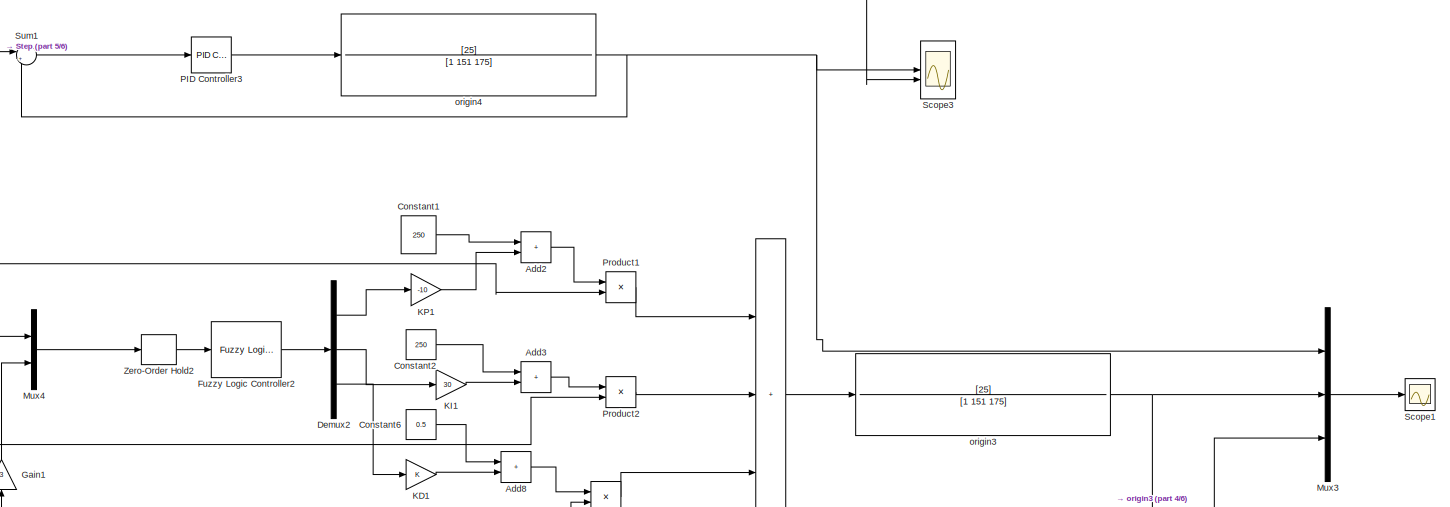
[diagram: root canvas - part 1/6, top right region]
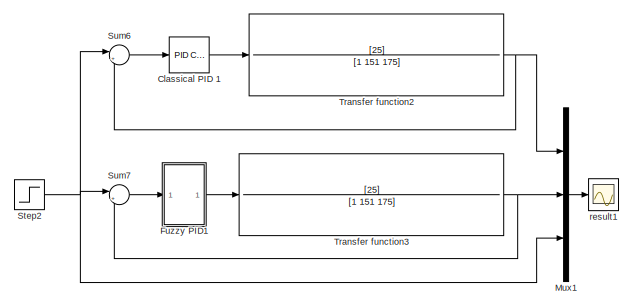
[diagram: root canvas - part 2/6, top left region]
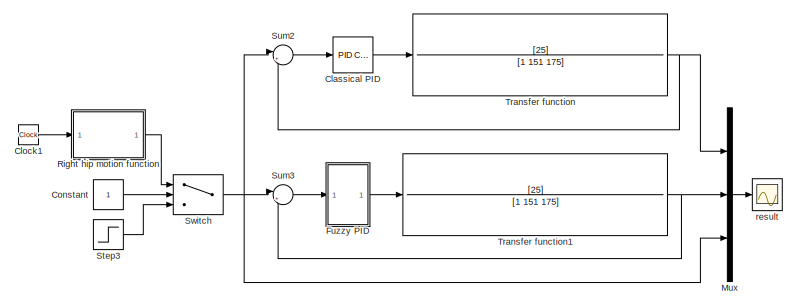
[diagram: root canvas - part 3/6, top left region]
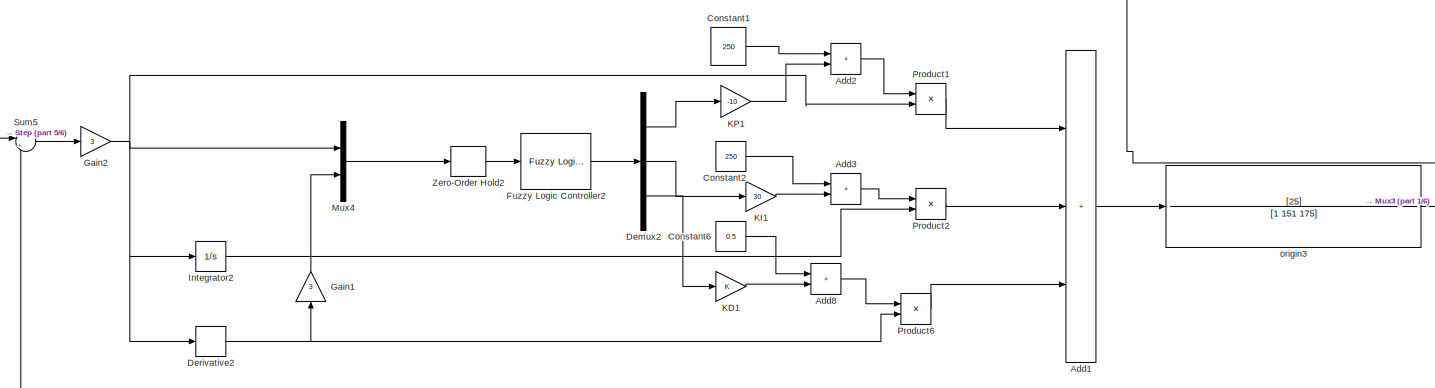
[diagram: root canvas - part 4/6, top right region]
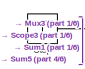
[diagram: root canvas - part 5/6, top center region]
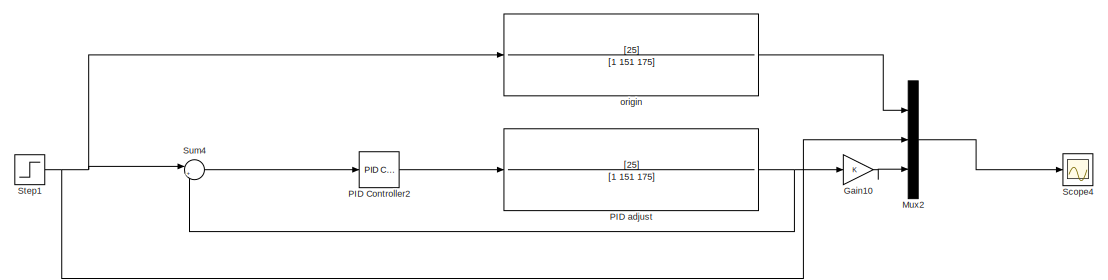
[diagram: root canvas - part 6/6, bottom left region]
MODEL slx_5ab0429d0b5c
KIND model
CONFIG AbsTol = auto
CONFIG EnableMultiTasking = off
CONFIG FixedStep = 0.01
CONFIG MaxStep = auto
CONFIG MinStep = auto
CONFIG RelTol = 1e-5
CONFIG SampleTimeConstraint = Unconstrained
CONFIG SolverName = VariableStepAuto
CONFIG StartTime = 0.0
CONFIG StopTime = 3
BLOCK [Reference]  Classical PID   REF=slpidlib/PID Controller
  LibrarySourceBlock = simulink/Continuous/PID Controller
  SourceBlock = slpidlib/PID Controller
  SourceType = PID 1dof
BLOCK [Reference]  Classical PID 1  REF=slpidlib/PID Controller
  LibrarySourceBlock = simulink/Continuous/PID Controller
  SourceBlock = slpidlib/PID Controller
  SourceType = PID 1dof
BLOCK [Sum] Add1
  IconShape = rectangular
  Inputs = +++
BLOCK [Sum] Add2
  IconShape = rectangular
BLOCK [Sum] Add3
  IconShape = rectangular
BLOCK [Sum] Add8
  IconShape = rectangular
BLOCK [Clock] Clock1
  Decimation = 4
BLOCK [Constant] Constant
BLOCK [Constant] Constant1
  Value = 250
BLOCK [Constant] Constant2
  Value = 250
BLOCK [Constant] Constant6
  Value = 0.5
BLOCK [Demux] Demux2
  Outputs = 3
BLOCK [Derivative] Derivative2
BLOCK [Reference] Fuzzy Logic Controller2  REF=fuzblock/Fuzzy Logic   (lib defined in mdl_858b3b3e7478)
Controller
  SourceBlock = fuzblock/Fuzzy Logic \nController
  SourceType = Fuzzy Inference System
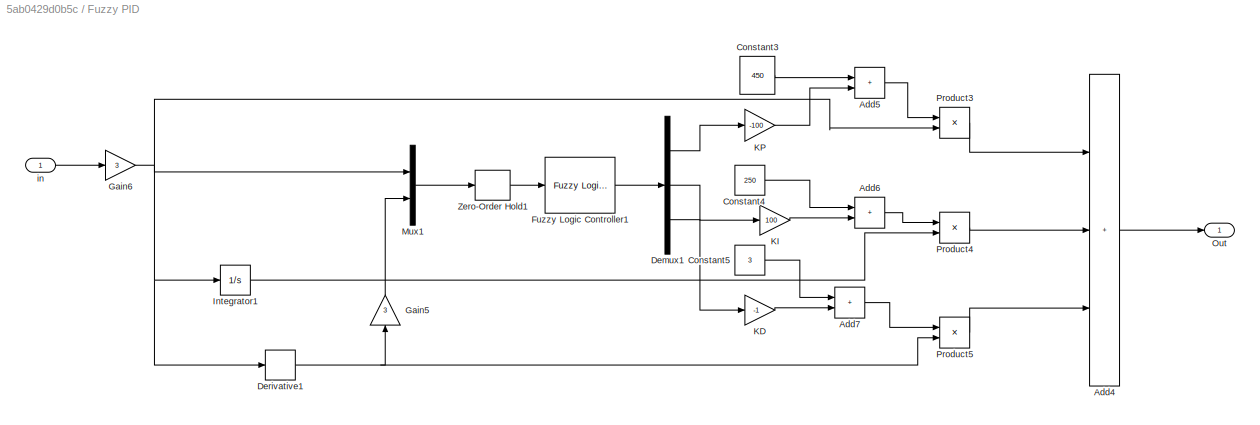
BLOCK [SubSystem] Fuzzy PID
BLOCK [Sum] Fuzzy PID/Add4
  IconShape = rectangular
  Inputs = +++
BLOCK [Sum] Fuzzy PID/Add5
  IconShape = rectangular
BLOCK [Sum] Fuzzy PID/Add6
  IconShape = rectangular
BLOCK [Sum] Fuzzy PID/Add7
  IconShape = rectangular
BLOCK [Constant] Fuzzy PID/Constant3
  Value = 450
BLOCK [Constant] Fuzzy PID/Constant4
  Value = 250
BLOCK [Constant] Fuzzy PID/Constant5
  Value = 3
BLOCK [Demux] Fuzzy PID/Demux1
  Outputs = 3
BLOCK [Derivative] Fuzzy PID/Derivative1
BLOCK [Reference] Fuzzy PID/Fuzzy Logic Controller1  REF=fuzblock/Fuzzy Logic   (lib defined in mdl_858b3b3e7478)
Controller
  SourceBlock = fuzblock/Fuzzy Logic \nController
  SourceType = Fuzzy Inference System
BLOCK [Gain] Fuzzy PID/Gain5
  Gain = 3
  NameLocation = right
BLOCK [Gain] Fuzzy PID/Gain6
  Gain = 3
BLOCK [Integrator] Fuzzy PID/Integrator1
BLOCK [Gain] Fuzzy PID/KD
  Gain = -1
BLOCK [Gain] Fuzzy PID/KI
  Gain = 100
BLOCK [Gain] Fuzzy PID/KP
  Gain = -100
BLOCK [Mux] Fuzzy PID/Mux1
  DisplayOption = bar
  Inputs = 2
BLOCK [Outport] Fuzzy PID/Out
BLOCK [Product] Fuzzy PID/Product3
BLOCK [Product] Fuzzy PID/Product4
BLOCK [Product] Fuzzy PID/Product5
BLOCK [ZeroOrderHold] Fuzzy PID/Zero-Order Hold1
  SampleTime = -1
BLOCK [Inport] Fuzzy PID/in
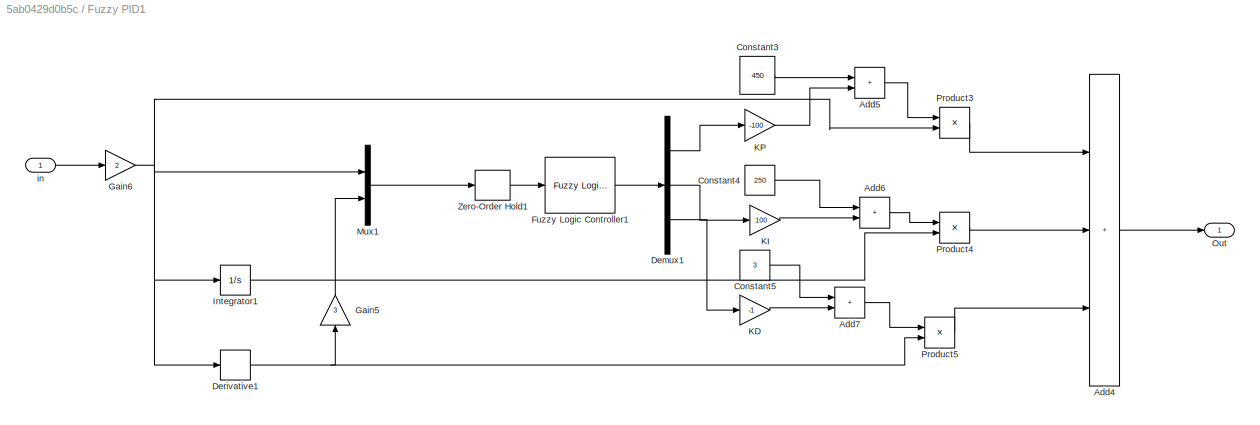
BLOCK [SubSystem] Fuzzy PID1
BLOCK [Sum] Fuzzy PID1/Add4
  IconShape = rectangular
  Inputs = +++
BLOCK [Sum] Fuzzy PID1/Add5
  IconShape = rectangular
BLOCK [Sum] Fuzzy PID1/Add6
  IconShape = rectangular
BLOCK [Sum] Fuzzy PID1/Add7
  IconShape = rectangular
BLOCK [Constant] Fuzzy PID1/Constant3
  Value = 450
BLOCK [Constant] Fuzzy PID1/Constant4
  Value = 250
BLOCK [Constant] Fuzzy PID1/Constant5
  Value = 3
BLOCK [Demux] Fuzzy PID1/Demux1
  Outputs = 3
BLOCK [Derivative] Fuzzy PID1/Derivative1
BLOCK [Reference] Fuzzy PID1/Fuzzy Logic Controller1  REF=fuzblock/Fuzzy Logic   (lib defined in mdl_858b3b3e7478)
Controller
  SourceBlock = fuzblock/Fuzzy Logic \nController
  SourceType = Fuzzy Inference System
BLOCK [Gain] Fuzzy PID1/Gain5
  Gain = 3
  NameLocation = right
BLOCK [Gain] Fuzzy PID1/Gain6
  Gain = 2
BLOCK [Integrator] Fuzzy PID1/Integrator1
BLOCK [Gain] Fuzzy PID1/KD
  Gain = -1
BLOCK [Gain] Fuzzy PID1/KI
  Gain = 100
BLOCK [Gain] Fuzzy PID1/KP
  Gain = -100
BLOCK [Mux] Fuzzy PID1/Mux1
  DisplayOption = bar
  Inputs = 2
BLOCK [Outport] Fuzzy PID1/Out
BLOCK [Product] Fuzzy PID1/Product3
BLOCK [Product] Fuzzy PID1/Product4
BLOCK [Product] Fuzzy PID1/Product5
BLOCK [ZeroOrderHold] Fuzzy PID1/Zero-Order Hold1
  SampleTime = -1
BLOCK [Inport] Fuzzy PID1/in
BLOCK [Gain] Gain1
  Gain = 3
  NameLocation = right
BLOCK [Gain] Gain10
BLOCK [Gain] Gain2
  Gain = 3
BLOCK [Integrator] Integrator2
BLOCK [Gain] KD1
BLOCK [Gain] KI1
  Gain = 30
BLOCK [Gain] KP1
  Gain = -10
BLOCK [Mux] Mux
  DisplayOption = bar
  Inputs = 3
BLOCK [Mux] Mux1
  DisplayOption = bar
  Inputs = 3
BLOCK [Mux] Mux2
  DisplayOption = bar
  Inputs = 3
BLOCK [Mux] Mux3
  DisplayOption = bar
  Inputs = 3
BLOCK [Mux] Mux4
  DisplayOption = bar
  Inputs = 2
BLOCK [Reference] PID Controller2  REF=slpidlib/PID Controller
  LibrarySourceBlock = simulink/Continuous/PID Controller
  SourceBlock = slpidlib/PID Controller
  SourceType = PID 1dof
BLOCK [Reference] PID Controller3  REF=slpidlib/PID Controller
  LibrarySourceBlock = simulink/Continuous/PID Controller
  SourceBlock = slpidlib/PID Controller
  SourceType = PID 1dof
BLOCK [TransferFcn] PID adjust
  Denominator = [1 151 175]
  Numerator = [25]
BLOCK [Product] Product1
BLOCK [Product] Product2
BLOCK [Product] Product6
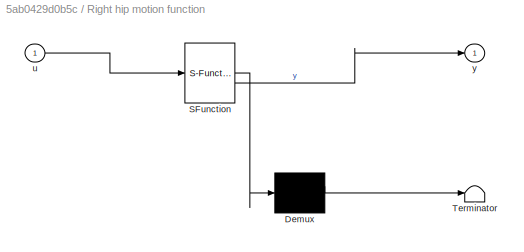
BLOCK [SubSystem] Right hip motion function
  ErrorFcn = Stateflow.Translate.translate
  LibrarySourceBlock = simulink/User-Defined\nFunctions/MATLAB Function
  PermitHierarchicalResolution = ExplicitOnly
  SFBlockType = MATLAB Function
  TreatAsAtomicUnit = on
BLOCK [Demux] Right hip motion function/ Demux 
  Outputs = 1
BLOCK [S-Function] Right hip motion function/ SFunction 
  EnableBusSupport = on
  FunctionName = sf_sfun
  PortCounts = [1 2]
  SFcnIsStateOwnerBlock = off
  SFunctionDeploymentMode = off
  Tag = Stateflow S-Function 1
BLOCK [Terminator] Right hip motion function/ Terminator 
BLOCK [Inport] Right hip motion function/u
BLOCK [Outport] Right hip motion function/y
BLOCK [Scope] Scope1
  Floating = off
  NumInputPorts = 1
  ScopeSpecificationString = Simulink.scopes.TimeScopeBlockCfg('CurrentConfiguration', extmgr.ConfigurationSet(extmgr.Configuration('Core','General UI',true),extmgr.Configuration('Core','Source UI',true),extmgr.Configuration('Sources','WiredSimulink',true,'DataLoggingVariableName','ScopeData1'),extmgr.Configuration('Visuals','Time Domain',true,'SerializedDisplays',{struct('MinYLimReal','-32.60766','MaxYLimReal','22.91372','YL...<+1529ch>
BLOCK [Scope] Scope3
  Floating = off
  NumInputPorts = 2
  ScopeSpecificationString = Simulink.scopes.TimeScopeBlockCfg('CurrentConfiguration', extmgr.ConfigurationSet(extmgr.Configuration('Core','General UI',true),extmgr.Configuration('Core','Source UI',true),extmgr.Configuration('Sources','WiredSimulink',true,'DataLoggingVariableName','ScopeData2'),extmgr.Configuration('Visuals','Time Domain',true,'SerializedDisplays',{struct('MinYLimReal','-0.125','MaxYLimReal','1.125','YLabelRe...<+1471ch>
BLOCK [Scope] Scope4
  Floating = off
  NumInputPorts = 1
  ScopeSpecificationString = Simulink.scopes.TimeScopeBlockCfg('CurrentConfiguration', extmgr.ConfigurationSet(extmgr.Configuration('Core','General UI',true),extmgr.Configuration('Core','Source UI',true),extmgr.Configuration('Sources','WiredSimulink',true,'DataLoggingVariableName','ScopeData4'),extmgr.Configuration('Visuals','Time Domain',true,'SerializedDisplays',{struct('MinYLimReal','-0.04343','MaxYLimReal','1.33303','YLab...<+1453ch>
BLOCK [Step] Step
  SampleTime = 0
  Time = 0
BLOCK [Step] Step1
  SampleTime = 0
  Time = 0
BLOCK [Step] Step2
  SampleTime = 0
  Time = 0
BLOCK [Step] Step3
  SampleTime = 0
  Time = 0
BLOCK [Sum] Sum1
  Inputs = |+-
BLOCK [Sum] Sum2
  Inputs = |+-
BLOCK [Sum] Sum3
  Inputs = |+-
BLOCK [Sum] Sum4
  Inputs = |+-
BLOCK [Sum] Sum5
  Inputs = |+-
BLOCK [Sum] Sum6
  Inputs = |+-
BLOCK [Sum] Sum7
  Inputs = |+-
BLOCK [Switch] Switch
  Criteria = u2 > Threshold
  InputSameDT = off
  SaturateOnIntegerOverflow = off
BLOCK [TransferFcn] Transfer function
  Denominator = [1 151 175]
  Numerator = [25]
BLOCK [TransferFcn] Transfer function1
  Denominator = [1 151 175]
  Numerator = [25]
BLOCK [TransferFcn] Transfer function2
  Denominator = [1 151 175]
  Numerator = [25]
BLOCK [TransferFcn] Transfer function3
  Denominator = [1 151 175]
  Numerator = [25]
BLOCK [ZeroOrderHold] Zero-Order Hold2
  SampleTime = -1
BLOCK [TransferFcn] origin
  Denominator = [1 151 175]
  Numerator = [25]
BLOCK [TransferFcn] origin3
  Denominator = [1 151 175]
  Numerator = [25]
BLOCK [TransferFcn] origin4
  Denominator = [1 151 175]
  Numerator = [25]
BLOCK [Scope] result
  Floating = off
  NumInputPorts = 1
  ScopeSpecificationString = Simulink.scopes.TimeScopeBlockCfg('CurrentConfiguration', extmgr.ConfigurationSet(extmgr.Configuration('Core','General UI',true,'FigureColor',[1 1 1]),extmgr.Configuration('Core','Source UI',true),extmgr.Configuration('Sources','WiredSimulink',true,'DataLoggingVariableName','ScopeData1'),extmgr.Configuration('Visuals','Time Domain',true,'PlotType','Line','SerializedDisplays',{struct('MinYLimReal',...<+1843ch>
BLOCK [Scope] result1
  Floating = off
  NumInputPorts = 1
  ScopeSpecificationString = Simulink.scopes.TimeScopeBlockCfg('CurrentConfiguration', extmgr.ConfigurationSet(extmgr.Configuration('Core','General UI',true,'FigureColor',[1 1 1]),extmgr.Configuration('Core','Source UI',true),extmgr.Configuration('Sources','WiredSimulink',true,'DataLoggingVariableName','ScopeData1'),extmgr.Configuration('Visuals','Time Domain',true,'PlotType','Line','SerializedDisplays',{struct('MinYLimReal',...<+1853ch>
LINE  Classical PID 1:1 -> Transfer function2:1
LINE  Classical PID :1 -> Transfer function:1
LINE Add1:1 -> origin3:1
LINE Add2:1 -> Product1:1
LINE Add3:1 -> Product2:1
LINE Add8:1 -> Product6:1
LINE Clock1:1 -> Right hip motion function:1
LINE Constant1:1 -> Add2:1
LINE Constant2:1 -> Add3:1
LINE Constant6:1 -> Add8:1
LINE Constant:1 -> Switch:2
LINE Demux2:1 -> KP1:1
LINE Demux2:2 -> KI1:1
LINE Demux2:3 -> KD1:1
NET Derivative2:1 -> Gain1:1, Product6:2
LINE Fuzzy Logic Controller2:1 -> Demux2:1
LINE Fuzzy PID/Add4:1 -> Fuzzy PID/Out:1
LINE Fuzzy PID/Add5:1 -> Fuzzy PID/Product3:1
LINE Fuzzy PID/Add6:1 -> Fuzzy PID/Product4:1
LINE Fuzzy PID/Add7:1 -> Fuzzy PID/Product5:1
LINE Fuzzy PID/Constant3:1 -> Fuzzy PID/Add5:1
LINE Fuzzy PID/Constant4:1 -> Fuzzy PID/Add6:1
LINE Fuzzy PID/Constant5:1 -> Fuzzy PID/Add7:1
LINE Fuzzy PID/Demux1:1 -> Fuzzy PID/KP:1
LINE Fuzzy PID/Demux1:2 -> Fuzzy PID/KI:1
LINE Fuzzy PID/Demux1:3 -> Fuzzy PID/KD:1
NET Fuzzy PID/Derivative1:1 -> Fuzzy PID/Gain5:1, Fuzzy PID/Product5:2
LINE Fuzzy PID/Fuzzy Logic Controller1:1 -> Fuzzy PID/Demux1:1
LINE Fuzzy PID/Gain5:1 -> Fuzzy PID/Mux1:2
NET Fuzzy PID/Gain6:1 -> Fuzzy PID/Derivative1:1, Fuzzy PID/Integrator1:1, Fuzzy PID/Mux1:1, Fuzzy PID/Product3:2
LINE Fuzzy PID/Integrator1:1 -> Fuzzy PID/Product4:2
LINE Fuzzy PID/KD:1 -> Fuzzy PID/Add7:2
LINE Fuzzy PID/KI:1 -> Fuzzy PID/Add6:2
LINE Fuzzy PID/KP:1 -> Fuzzy PID/Add5:2
LINE Fuzzy PID/Mux1:1 -> Fuzzy PID/Zero-Order Hold1:1
LINE Fuzzy PID/Product3:1 -> Fuzzy PID/Add4:1
LINE Fuzzy PID/Product4:1 -> Fuzzy PID/Add4:2
LINE Fuzzy PID/Product5:1 -> Fuzzy PID/Add4:3
LINE Fuzzy PID/Zero-Order Hold1:1 -> Fuzzy PID/Fuzzy Logic Controller1:1
LINE Fuzzy PID/in:1 -> Fuzzy PID/Gain6:1
LINE Fuzzy PID1/Add4:1 -> Fuzzy PID1/Out:1
LINE Fuzzy PID1/Add5:1 -> Fuzzy PID1/Product3:1
LINE Fuzzy PID1/Add6:1 -> Fuzzy PID1/Product4:1
LINE Fuzzy PID1/Add7:1 -> Fuzzy PID1/Product5:1
LINE Fuzzy PID1/Constant3:1 -> Fuzzy PID1/Add5:1
LINE Fuzzy PID1/Constant4:1 -> Fuzzy PID1/Add6:1
LINE Fuzzy PID1/Constant5:1 -> Fuzzy PID1/Add7:1
LINE Fuzzy PID1/Demux1:1 -> Fuzzy PID1/KP:1
LINE Fuzzy PID1/Demux1:2 -> Fuzzy PID1/KI:1
LINE Fuzzy PID1/Demux1:3 -> Fuzzy PID1/KD:1
NET Fuzzy PID1/Derivative1:1 -> Fuzzy PID1/Gain5:1, Fuzzy PID1/Product5:2
LINE Fuzzy PID1/Fuzzy Logic Controller1:1 -> Fuzzy PID1/Demux1:1
LINE Fuzzy PID1/Gain5:1 -> Fuzzy PID1/Mux1:2
NET Fuzzy PID1/Gain6:1 -> Fuzzy PID1/Derivative1:1, Fuzzy PID1/Integrator1:1, Fuzzy PID1/Mux1:1, Fuzzy PID1/Product3:2
LINE Fuzzy PID1/Integrator1:1 -> Fuzzy PID1/Product4:2
LINE Fuzzy PID1/KD:1 -> Fuzzy PID1/Add7:2
LINE Fuzzy PID1/KI:1 -> Fuzzy PID1/Add6:2
LINE Fuzzy PID1/KP:1 -> Fuzzy PID1/Add5:2
LINE Fuzzy PID1/Mux1:1 -> Fuzzy PID1/Zero-Order Hold1:1
LINE Fuzzy PID1/Product3:1 -> Fuzzy PID1/Add4:1
LINE Fuzzy PID1/Product4:1 -> Fuzzy PID1/Add4:2
LINE Fuzzy PID1/Product5:1 -> Fuzzy PID1/Add4:3
LINE Fuzzy PID1/Zero-Order Hold1:1 -> Fuzzy PID1/Fuzzy Logic Controller1:1
LINE Fuzzy PID1/in:1 -> Fuzzy PID1/Gain6:1
LINE Fuzzy PID1:1 -> Transfer function3:1
LINE Fuzzy PID:1 -> Transfer function1:1
LINE Gain10:1 -> Mux2:3
LINE Gain1:1 -> Mux4:2
NET Gain2:1 -> Derivative2:1, Integrator2:1, Mux4:1, Product1:2
LINE Integrator2:1 -> Product2:2
LINE KD1:1 -> Add8:2
LINE KI1:1 -> Add3:2
LINE KP1:1 -> Add2:2
LINE Mux1:1 -> result1:1
LINE Mux2:1 -> Scope4:1
LINE Mux3:1 -> Scope1:1
LINE Mux4:1 -> Zero-Order Hold2:1
LINE Mux:1 -> result:1
LINE PID Controller2:1 -> PID adjust:1
LINE PID Controller3:1 -> origin4:1
NET PID adjust:1 -> Gain10:1, Sum4:2
LINE Product1:1 -> Add1:1
LINE Product2:1 -> Add1:2
LINE Product6:1 -> Add1:3
LINE Right hip motion function:1 -> Switch:1
NET Step1:1 -> Mux2:2, Sum4:1, origin:1
NET Step2:1 -> Mux1:3, Sum6:1, Sum7:1
LINE Step3:1 -> Switch:3
NET Step:1 -> Mux3:3, Scope3:2, Sum1:1, Sum5:1
LINE Sum1:1 -> PID Controller3:1
LINE Sum2:1 ->  Classical PID :1
LINE Sum3:1 -> Fuzzy PID:1
LINE Sum4:1 -> PID Controller2:1
LINE Sum5:1 -> Gain2:1
LINE Sum6:1 ->  Classical PID 1:1
LINE Sum7:1 -> Fuzzy PID1:1
NET Switch:1 -> Mux:3, Sum2:1, Sum3:1
NET Transfer function1:1 -> Mux:2, Sum3:2
NET Transfer function2:1 -> Mux1:1, Sum6:2
NET Transfer function3:1 -> Mux1:2, Sum7:2
NET Transfer function:1 -> Mux:1, Sum2:2
LINE Zero-Order Hold2:1 -> Fuzzy Logic Controller2:1
NET origin3:1 -> Mux3:2, Sum5:2
NET origin4:1 -> Mux3:1, Scope3:1, Sum1:2
LINE origin:1 -> Mux2:1
note: NET lines group one-source signal fan-out (src -> all destinations, sorted); 1:1 wires keep LINE
CHART Right hip motion function states=1 transitions=1
  STATE_LABEL 'eML_blk_kernel()'
  STATE_LABEL 'SCRIPT:\nfunction y = fcn(u)\n\ny = 20.26*sin(5.126*u-1.436) +(-0.6631)*sin(6.249*u+-1.473) + 0.814*sin(4.749*u+-2.342) +  14.17*sin(0.005024*u+-0.1431) ...\n+ 4.445*sin(10.24*u+4.138);\n%-3.079+-0.2911*cos(u*1.651)+-0.9948*sin(u*1.651)\n%          +-1.576*cos(2u*1.651)+-0.9949*sin(u*1.651)\n%          +-3.536*cos(3u*1.651)+-0.9949*sin(u*1.651)\n%          +0.2471*cos(4u*1.651)+-0.9949*sin(u*1.651)\n%     ...<+209ch>'
CHART  states=0 transitions=0
